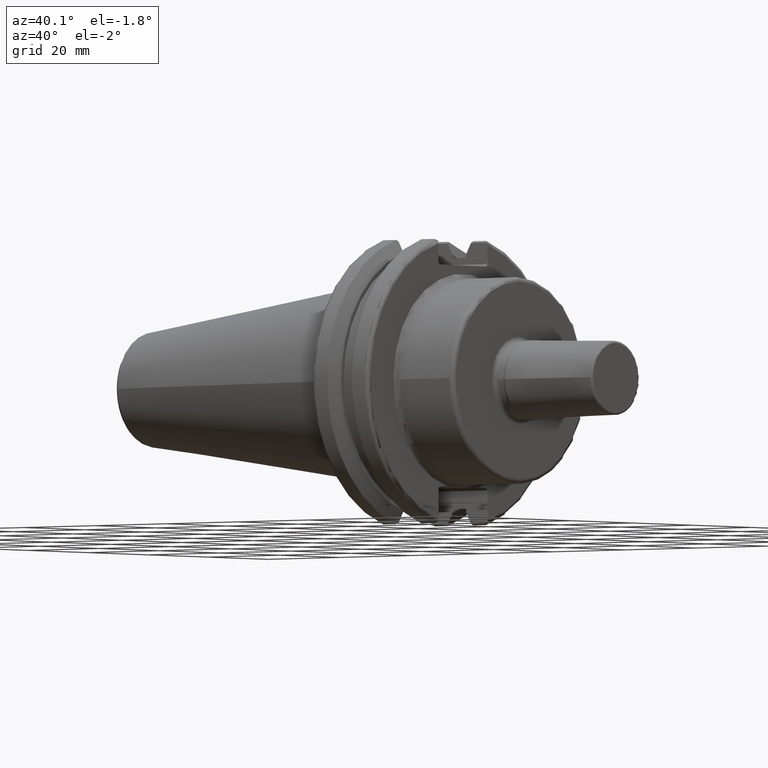
[diagram: clean part render]
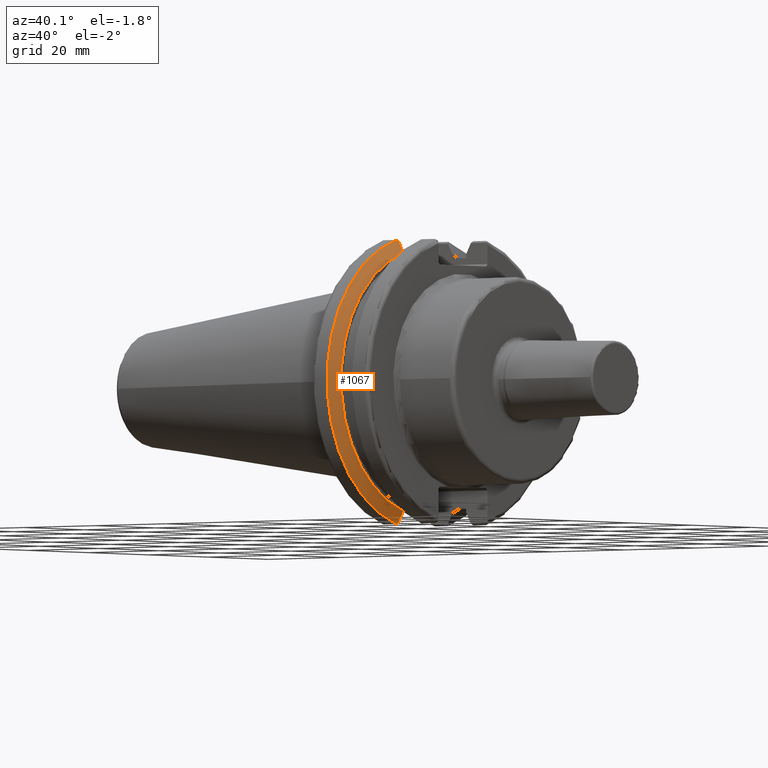
[diagram: same view with one face highlighted and labeled with its STEP entity id]
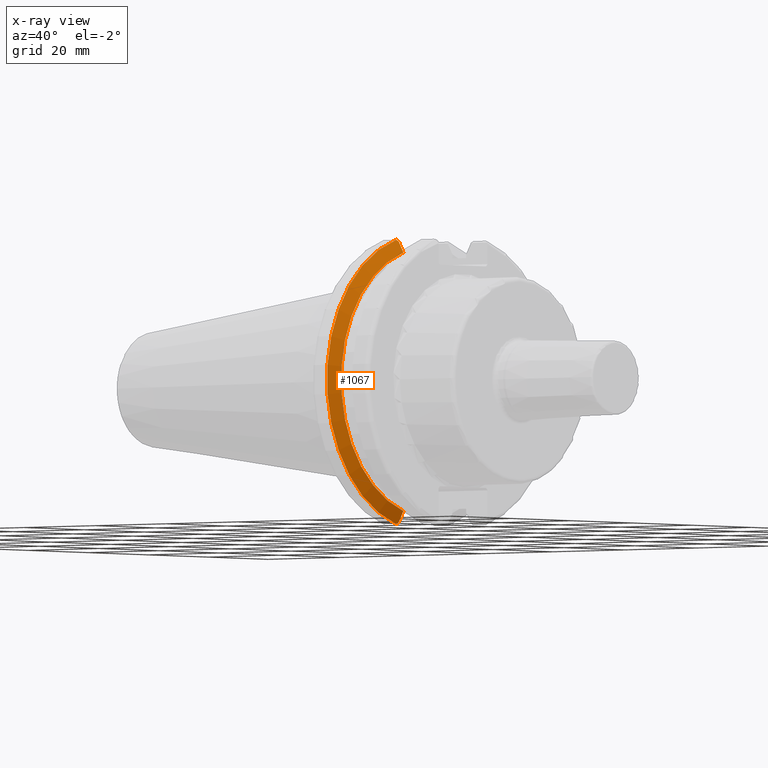
[diagram: x-ray of the same camera — body ghosted, the highlighted face saturated]
A machine part, auxiliary view. The second image highlights one B-rep face of the part: STEP entity #1067.
The next image is the same camera in x-ray: the body ghosted, the highlighted face saturated — about 0% of this face is hidden behind the body in this view.
In plain terms, the highlighted conical surface has half-angle 60 deg.
Its self-contained STEP definition (entity closure, byte-faithful):
#18=(
BOUNDED_CURVE()
B_SPLINE_CURVE(2,(#1768,#1769,#1770),.UNSPECIFIED.,.F.,.F.)
B_SPLINE_CURVE_WITH_KNOTS((3,3),(0.,0.276549142796606),.UNSPECIFIED.)
CURVE()
GEOMETRIC_REPRESENTATION_ITEM()
RATIONAL_B_SPLINE_CURVE((1.,1.00095203903674,1.00031614444931))
REPRESENTATION_ITEM('')
);
#21=(
BOUNDED_CURVE()
B_SPLINE_CURVE(2,(#1796,#1797,#1798),.UNSPECIFIED.,.F.,.F.)
B_SPLINE_CURVE_WITH_KNOTS((3,3),(0.0550586467396013,0.331607789535851),
 .UNSPECIFIED.)
CURVE()
GEOMETRIC_REPRESENTATION_ITEM()
RATIONAL_B_SPLINE_CURVE((1.00031614445107,1.00095203904202,1.))
REPRESENTATION_ITEM('')
);
#22=(
BOUNDED_CURVE()
B_SPLINE_CURVE(2,(#1831,#1832,#1833),.UNSPECIFIED.,.F.,.F.)
B_SPLINE_CURVE_WITH_KNOTS((3,3),(0.,0.0639048713675736),.UNSPECIFIED.)
CURVE()
GEOMETRIC_REPRESENTATION_ITEM()
RATIONAL_B_SPLINE_CURVE((1.,1.00028444218293,1.00047644010591))
REPRESENTATION_ITEM('')
);
#23=(
BOUNDED_CURVE()
B_SPLINE_CURVE(2,(#1839,#1840,#1841),.UNSPECIFIED.,.F.,.F.)
B_SPLINE_CURVE_WITH_KNOTS((3,3),(0.329353533631217,0.393258405001025),
 .UNSPECIFIED.)
CURVE()
GEOMETRIC_REPRESENTATION_ITEM()
RATIONAL_B_SPLINE_CURVE((1.00047644010584,1.0002844421829,1.))
REPRESENTATION_ITEM('')
);
#38=CONICAL_SURFACE('',#1198,30.3546886482472,1.0471975511966);
#275=FACE_OUTER_BOUND('',#339,.T.);
#339=EDGE_LOOP('',(#954,#955,#956,#957,#958,#959));
#404=CIRCLE('',#1160,31.75);
#419=CIRCLE('',#1199,28.9593772964944);
#491=VERTEX_POINT('',#1765);
#492=VERTEX_POINT('',#1767);
#501=VERTEX_POINT('',#1793);
#502=VERTEX_POINT('',#1795);
#506=VERTEX_POINT('',#1829);
#507=VERTEX_POINT('',#1835);
#615=EDGE_CURVE('',#492,#491,#18,.T.);
#626=EDGE_CURVE('',#502,#501,#21,.T.);
#634=EDGE_CURVE('',#506,#491,#22,.T.);
#636=EDGE_CURVE('',#506,#507,#404,.T.);
#637=EDGE_CURVE('',#502,#507,#23,.T.);
#680=EDGE_CURVE('',#492,#501,#419,.T.);
#954=ORIENTED_EDGE('',*,*,#637,.F.);
#955=ORIENTED_EDGE('',*,*,#626,.T.);
#956=ORIENTED_EDGE('',*,*,#680,.F.);
#957=ORIENTED_EDGE('',*,*,#615,.T.);
#958=ORIENTED_EDGE('',*,*,#634,.F.);
#959=ORIENTED_EDGE('',*,*,#636,.T.);
#1067=ADVANCED_FACE('',(#275),#38,.T.);
#1160=AXIS2_PLACEMENT_3D('',#1837,#1384,#1385);
#1198=AXIS2_PLACEMENT_3D('',#1961,#1478,#1479);
#1199=AXIS2_PLACEMENT_3D('',#1962,#1480,#1481);
#1384=DIRECTION('center_axis',(1.,0.,0.));
#1385=DIRECTION('ref_axis',(0.,0.,-1.));
#1478=DIRECTION('center_axis',(-1.,0.,0.));
#1479=DIRECTION('ref_axis',(0.,-1.,-1.22464679914735E-16));
#1480=DIRECTION('center_axis',(1.,0.,0.));
#1481=DIRECTION('ref_axis',(0.,0.,-1.));
#1765=CARTESIAN_POINT('',(7.87958530351256,-8.19,30.1755016258903));
#1767=CARTESIAN_POINT('',(9.212,-8.19,27.7771386827498));
#1768=CARTESIAN_POINT('Ctrl Pts',(9.212,-8.19,27.7771386827498));
#1769=CARTESIAN_POINT('Ctrl Pts',(8.57336356152746,-8.19,28.9303689539641));
#1770=CARTESIAN_POINT('Ctrl Pts',(7.87958530351256,-8.19,30.1755016258903));
#1793=CARTESIAN_POINT('',(9.212,-8.19,-27.7771386827498));
#1795=CARTESIAN_POINT('',(7.87958530351256,-8.19,-30.1755016258903));
#1796=CARTESIAN_POINT('Ctrl Pts',(7.87958530351256,-8.19,-30.1755016258903));
#1797=CARTESIAN_POINT('Ctrl Pts',(8.57336356151926,-8.19,-28.9303689539789));
#1798=CARTESIAN_POINT('Ctrl Pts',(9.212,-8.19,-27.7771386827498));
#1829=CARTESIAN_POINT('',(7.60083323092435,-8.67204822802685,30.5427254764662));
#1831=CARTESIAN_POINT('Ctrl Pts',(7.60083323092435,-8.67204822802686,30.5427254764662));
#1832=CARTESIAN_POINT('Ctrl Pts',(7.74189148121629,-8.42917748262642,30.3577067892629));
#1833=CARTESIAN_POINT('Ctrl Pts',(7.87958530351256,-8.19,30.1755016258903));
#1835=CARTESIAN_POINT('',(7.60083323092435,-8.67204822802685,-30.5427254764662));
#1837=CARTESIAN_POINT('Origin',(7.60083323092435,0.,0.));
#1839=CARTESIAN_POINT('Ctrl Pts',(7.87958530351256,-8.19,-30.1755016258903));
#1840=CARTESIAN_POINT('Ctrl Pts',(7.7418914812116,-8.42917748263464,-30.3577067892692));
#1841=CARTESIAN_POINT('Ctrl Pts',(7.60083323092435,-8.67204822802687,-30.5427254764662));
#1961=CARTESIAN_POINT('Origin',(8.40641661546218,0.,0.));
#1962=CARTESIAN_POINT('Origin',(9.212,0.,0.));